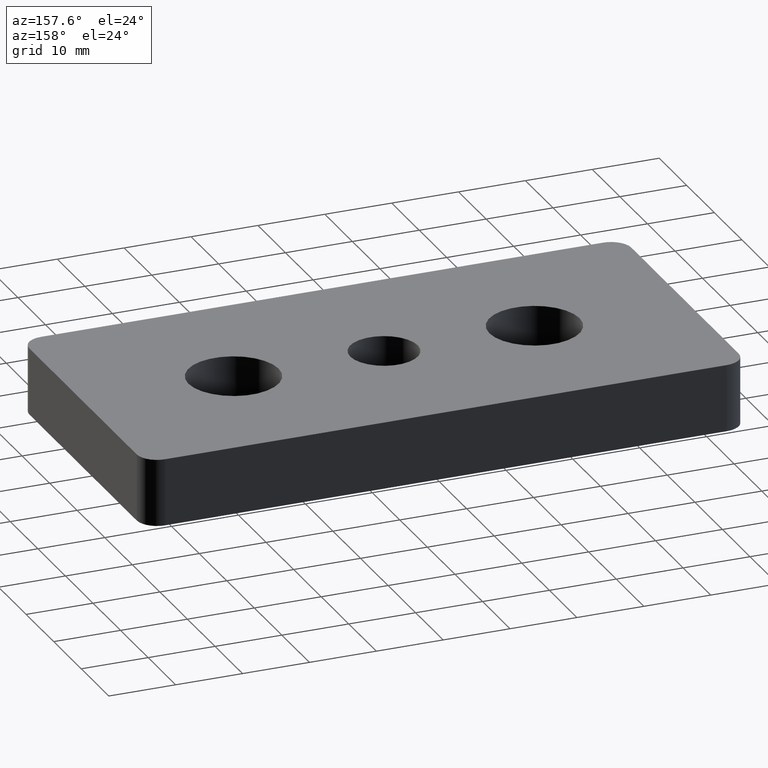
[diagram: clean part render]
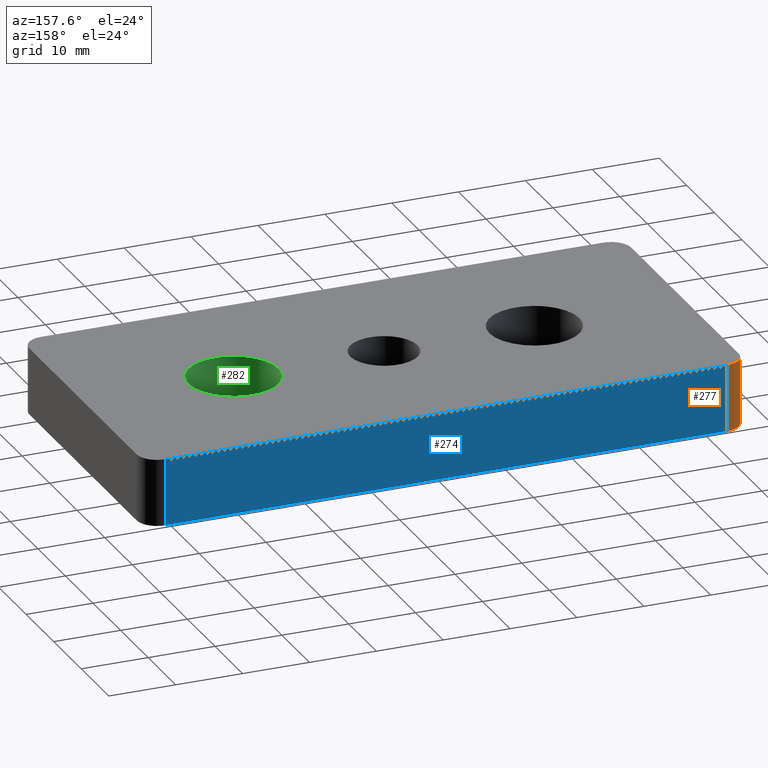
[diagram: same view with three faces highlighted in distinct colors, each labeled with its STEP entity id]
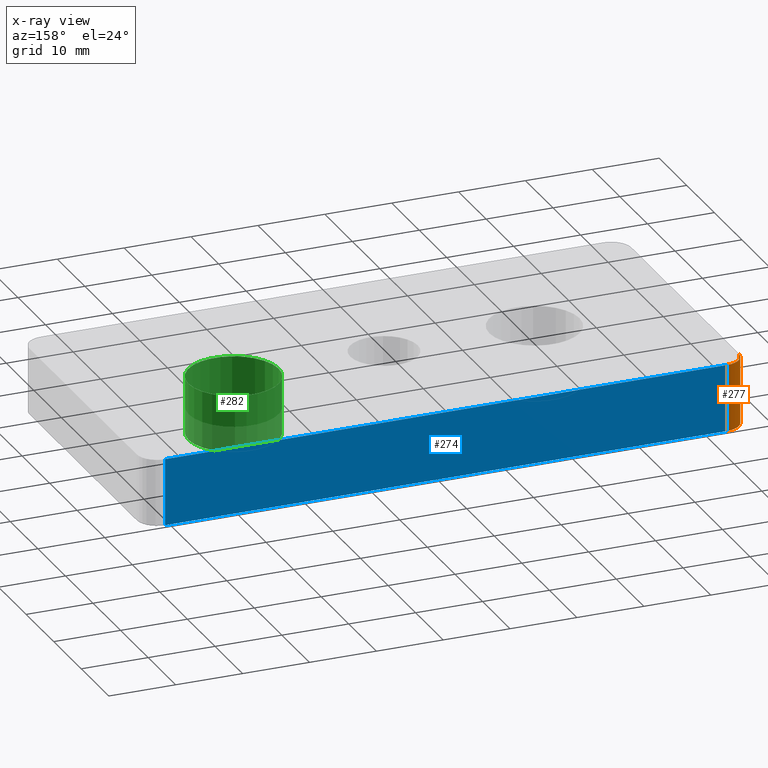
[diagram: x-ray of the same camera — body ghosted, the three highlighted faces saturated]
A machine part, auxiliary view with three faces highlighted in distinct colors.
The next image is the same camera in x-ray (body ghosted, the three faces saturated) — at least one of them is partly hidden behind the body in this view.
Their STEP definitions:

[orange] entity #277 — the highlighted cylindrical surface (edge-blend (fillet) strip) has radius 3 mm, axis along (0, 0, 1).
#43=FACE_OUTER_BOUND('',#63,.T.);
#63=EDGE_LOOP('',(#228,#229,#230,#231));
#92=LINE('',#452,#108);
#97=LINE('',#465,#113);
#108=VECTOR('',#363,10.);
#113=VECTOR('',#378,10.);
#118=CIRCLE('',#295,3.);
#125=CIRCLE('',#307,3.);
#141=VERTEX_POINT('',#433);
#142=VERTEX_POINT('',#435);
#148=VERTEX_POINT('',#451);
#151=VERTEX_POINT('',#463);
#169=EDGE_CURVE('',#142,#141,#118,.T.);
#177=EDGE_CURVE('',#148,#142,#92,.T.);
#183=EDGE_CURVE('',#151,#148,#125,.T.);
#184=EDGE_CURVE('',#141,#151,#97,.T.);
#228=ORIENTED_EDGE('',*,*,#183,.T.);
#229=ORIENTED_EDGE('',*,*,#177,.T.);
#230=ORIENTED_EDGE('',*,*,#169,.T.);
#231=ORIENTED_EDGE('',*,*,#184,.T.);
#264=CYLINDRICAL_SURFACE('',#306,3.);
#277=ADVANCED_FACE('',(#43),#264,.T.);
#295=AXIS2_PLACEMENT_3D('',#436,#345,#346);
#306=AXIS2_PLACEMENT_3D('',#462,#374,#375);
#307=AXIS2_PLACEMENT_3D('',#464,#376,#377);
#345=DIRECTION('center_axis',(0.,0.,1.));
#346=DIRECTION('ref_axis',(-0.707106781186549,0.707106781186546,0.));
#363=DIRECTION('',(0.,0.,-1.));
#374=DIRECTION('center_axis',(0.,0.,1.));
#375=DIRECTION('ref_axis',(-0.707106781186549,0.707106781186546,0.));
#376=DIRECTION('center_axis',(0.,0.,-1.));
#377=DIRECTION('ref_axis',(-0.707106781186549,0.707106781186546,0.));
#378=DIRECTION('',(0.,0.,1.));
#433=CARTESIAN_POINT('',(-45.,19.5,0.));
#435=CARTESIAN_POINT('',(-42.,22.5,0.));
#436=CARTESIAN_POINT('Origin',(-42.,19.5,0.));
#451=CARTESIAN_POINT('',(-42.,22.5,10.));
#452=CARTESIAN_POINT('',(-42.,22.5,0.));
#462=CARTESIAN_POINT('Origin',(-42.,19.5,0.));
#463=CARTESIAN_POINT('',(-45.,19.5,10.));
#464=CARTESIAN_POINT('Origin',(-42.,19.5,10.));
#465=CARTESIAN_POINT('',(-45.,19.5,0.));

[blue] entity #274 — the highlighted planar face has unit normal (0, 1, 0).
#30=PLANE('',#302);
#40=FACE_OUTER_BOUND('',#60,.T.);
#60=EDGE_LOOP('',(#216,#217,#218,#219));
#90=LINE('',#438,#106);
#91=LINE('',#449,#107);
#92=LINE('',#452,#108);
#93=LINE('',#453,#109);
#106=VECTOR('',#347,84.);
#107=VECTOR('',#360,10.);
#108=VECTOR('',#363,10.);
#109=VECTOR('',#364,84.);
#142=VERTEX_POINT('',#435);
#143=VERTEX_POINT('',#437);
#147=VERTEX_POINT('',#447);
#148=VERTEX_POINT('',#451);
#170=EDGE_CURVE('',#142,#143,#90,.T.);
#176=EDGE_CURVE('',#143,#147,#91,.T.);
#177=EDGE_CURVE('',#148,#142,#92,.T.);
#178=EDGE_CURVE('',#147,#148,#93,.T.);
#216=ORIENTED_EDGE('',*,*,#176,.F.);
#217=ORIENTED_EDGE('',*,*,#170,.F.);
#218=ORIENTED_EDGE('',*,*,#177,.F.);
#219=ORIENTED_EDGE('',*,*,#178,.F.);
#274=ADVANCED_FACE('',(#40),#30,.T.);
#302=AXIS2_PLACEMENT_3D('',#450,#361,#362);
#347=DIRECTION('',(1.,0.,0.));
#360=DIRECTION('',(0.,0.,1.));
#361=DIRECTION('center_axis',(0.,1.,0.));
#362=DIRECTION('ref_axis',(-1.,0.,0.));
#363=DIRECTION('',(0.,0.,-1.));
#364=DIRECTION('',(-1.,0.,0.));
#435=CARTESIAN_POINT('',(-42.,22.5,0.));
#437=CARTESIAN_POINT('',(42.,22.5,0.));
#438=CARTESIAN_POINT('',(-45.,22.5,0.));
#447=CARTESIAN_POINT('',(42.,22.5,10.));
#449=CARTESIAN_POINT('',(42.,22.5,0.));
#450=CARTESIAN_POINT('Origin',(45.,22.5,0.));
#451=CARTESIAN_POINT('',(-42.,22.5,10.));
#452=CARTESIAN_POINT('',(-42.,22.5,0.));
#453=CARTESIAN_POINT('',(-45.,22.5,10.));

[green] entity #282 — the highlighted cylindrical surface (bore or boss wall) has radius 6.75 mm, axis along (0, 0, 1).
#22=FACE_BOUND('',#73,.T.);
#48=FACE_OUTER_BOUND('',#72,.T.);
#72=EDGE_LOOP('',(#240));
#73=EDGE_LOOP('',(#241));
#129=CIRCLE('',#315,6.75);
#131=CIRCLE('',#318,6.75);
#155=VERTEX_POINT('',#476);
#157=VERTEX_POINT('',#481);
#188=EDGE_CURVE('',#155,#155,#129,.T.);
#190=EDGE_CURVE('',#157,#157,#131,.T.);
#240=ORIENTED_EDGE('',*,*,#190,.F.);
#241=ORIENTED_EDGE('',*,*,#188,.F.);
#267=CYLINDRICAL_SURFACE('',#317,6.75);
#282=ADVANCED_FACE('',(#48,#22),#267,.F.);
#315=AXIS2_PLACEMENT_3D('',#477,#393,#394);
#317=AXIS2_PLACEMENT_3D('',#480,#397,#398);
#318=AXIS2_PLACEMENT_3D('',#482,#399,#400);
#393=DIRECTION('center_axis',(0.,0.,1.));
#394=DIRECTION('ref_axis',(1.,0.,0.));
#397=DIRECTION('center_axis',(0.,0.,1.));
#398=DIRECTION('ref_axis',(1.,0.,0.));
#399=DIRECTION('center_axis',(0.,0.,-1.));
#400=DIRECTION('ref_axis',(1.,0.,0.));
#476=CARTESIAN_POINT('',(29.25,0.,1.5));
#477=CARTESIAN_POINT('Origin',(22.5,0.,1.5));
#480=CARTESIAN_POINT('Origin',(22.5,0.,5.75));
#481=CARTESIAN_POINT('',(29.25,0.,10.));
#482=CARTESIAN_POINT('Origin',(22.5,0.,10.));